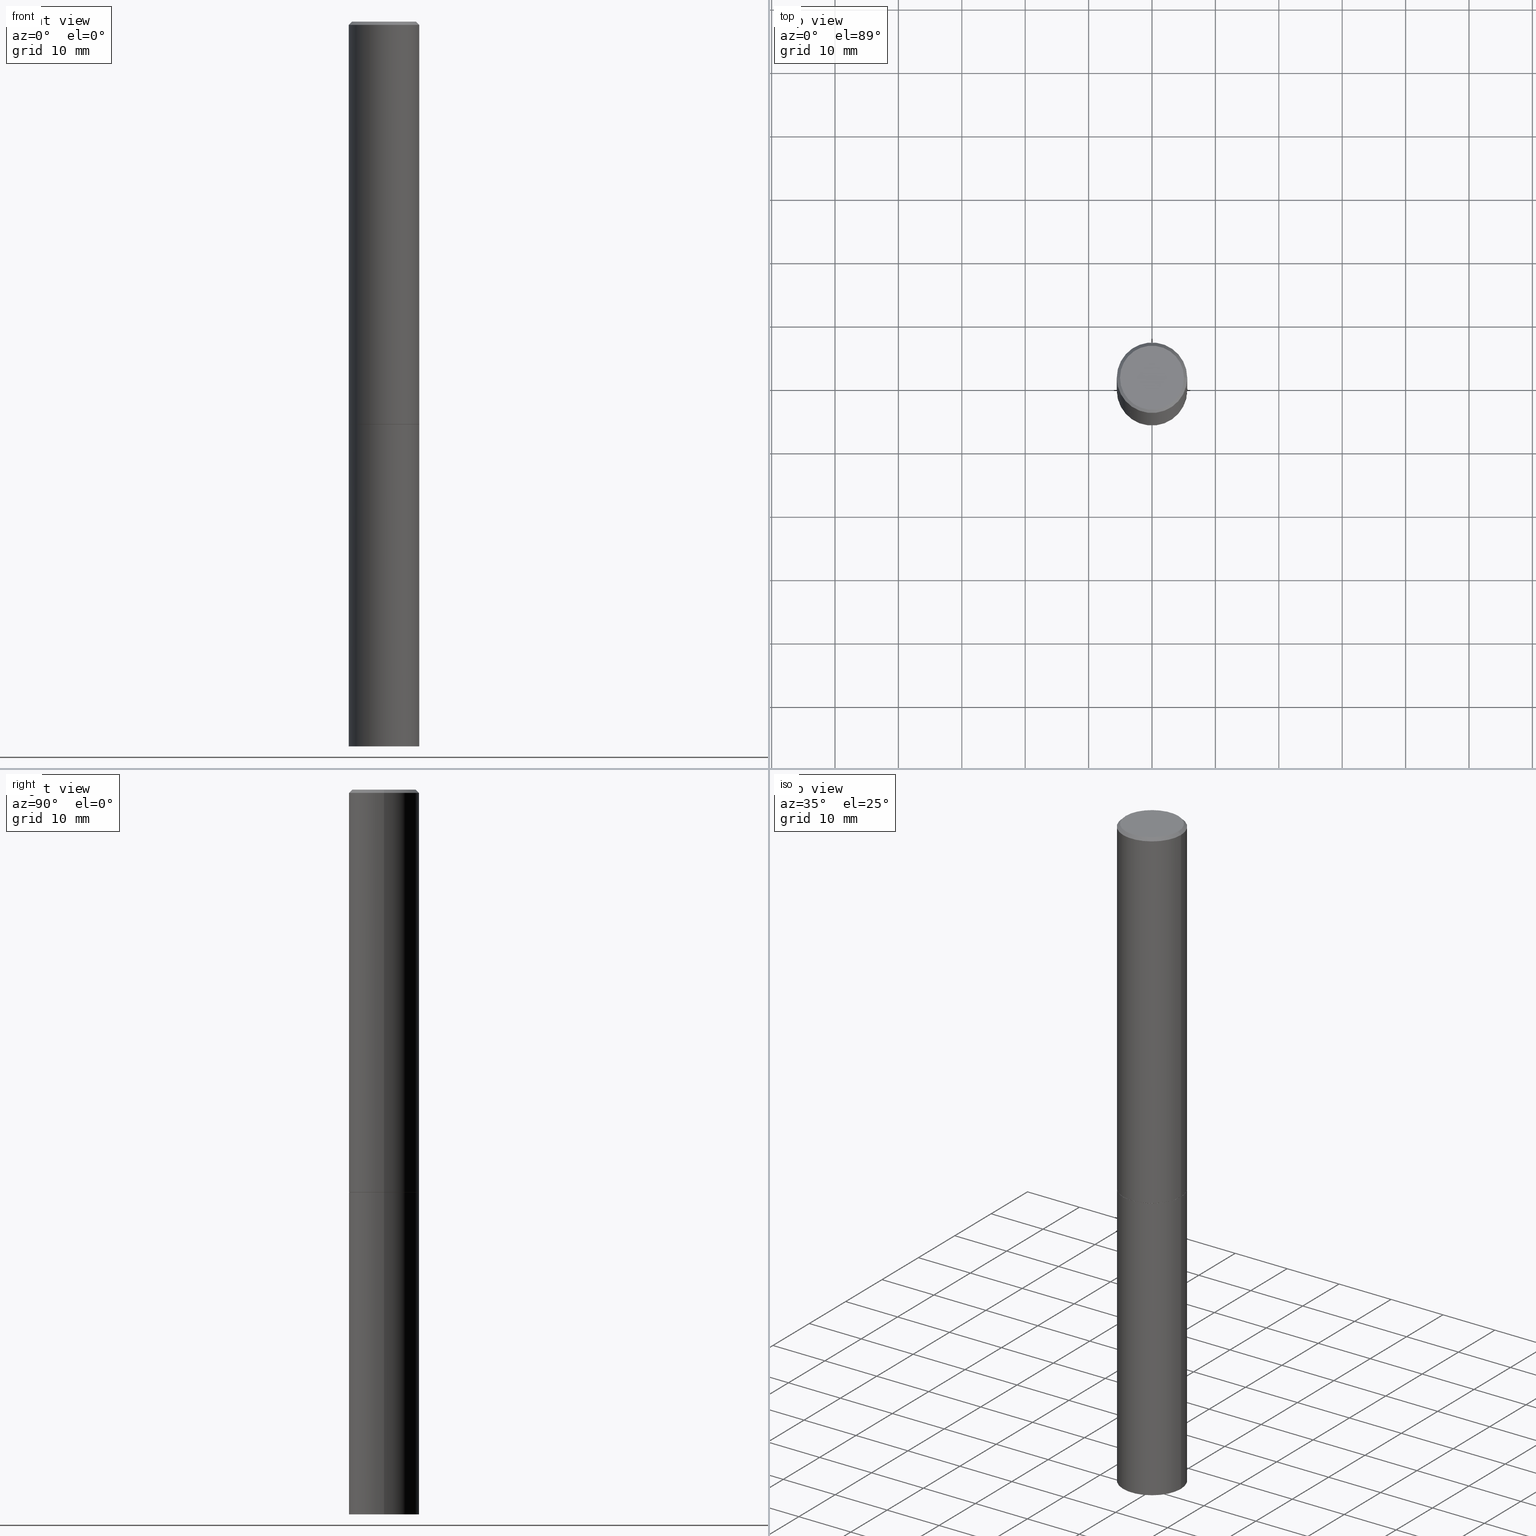
[diagram: canonical four-view strip — front | top / right | iso, engineering-drawing reading convention]
A machine part, canonical four-view strip (front | top / right | iso — engineering-drawing reading convention). The complete STEP part file that produces these views, byte-faithful:
ISO-10303-21;
HEADER;
FILE_DESCRIPTION (( 'STEP AP203' ),
    '1' );
FILE_NAME ('31765.STEP',
    '2023-03-21T20:30:40',
    ( '' ),
    ( '' ),
    'SwSTEP 2.0',
    'SolidWorks 2022',
    '' );
FILE_SCHEMA (( 'CONFIG_CONTROL_DESIGN' ));
ENDSEC;

DATA;
#1 = DIRECTION ( 'NONE',  ( 1.000000000000000000, -6.982962677686262766E-15, 0.000000000000000000 ) ) ;
#2 = LOCAL_TIME ( 16, 30, 40.00000000000000000, #241 ) ;
#3 = APPROVAL_STATUS ( 'not_yet_approved' ) ;
#4 = DATE_AND_TIME ( #61, #127 ) ;
#5 = CARTESIAN_POINT ( 'NONE',  ( 0.1987499999999996769, -1.467043770423236678E-15, 9.982525199991768280E-30 ) ) ;
#6 = PERSON_AND_ORGANIZATION ( #187, #68 ) ;
#7 = EDGE_LOOP ( 'NONE', ( #72, #69, #224 ) ) ;
#8 = MANIFOLD_SOLID_BREP ( 'Body-Move/Copy2[2]', #199 ) ;
#9 = EDGE_LOOP ( 'NONE', ( #213, #247, #135 ) ) ;
#10 = AXIS2_PLACEMENT_3D ( 'NONE', #242, #233, #205 ) ;
#11 = CARTESIAN_POINT ( 'NONE',  ( 1.100460962783311469E-28, -1.571166602479415690E-14, -4.500000000000000000 ) ) ;
#12 = ORIENTED_EDGE ( 'NONE', *, *, #184, .T. ) ;
#13 = DIRECTION ( 'NONE',  ( 1.000000000000000000, -6.982962677686266711E-15, 4.876176775795935793E-29 ) ) ;
#14 = EDGE_CURVE ( 'NONE', #328, #156, #302, .T. ) ;
#15 = ORIENTED_EDGE ( 'NONE', *, *, #208, .T. ) ;
#16 = DIRECTION ( 'NONE',  ( -2.445468806185136597E-29, 3.491481338843145583E-15, 1.000000000000000000 ) ) ;
#17 = CONICAL_SURFACE ( 'NONE', #114, 751.2258538476867216, 1.518436449235075036 ) ;
#18 = CARTESIAN_POINT ( 'NONE',  ( 0.000000000000000000, 0.000000000000000000, 0.000000000000000000 ) ) ;
#19 = DIRECTION ( 'NONE',  ( 1.000000000000000000, -6.982962677686262766E-15, 0.000000000000000000 ) ) ;
#20 = VERTEX_POINT ( 'NONE', #107 ) ;
#21 = PLANE ( 'NONE',  #80 ) ;
#22 = ORIENTED_EDGE ( 'NONE', *, *, #248, .T. ) ;
#23 = EDGE_CURVE ( 'NONE', #125, #194, #95, .T. ) ;
#24 = VECTOR ( 'NONE', #349, 39.37007874015748143 ) ;
#25 = CYLINDRICAL_SURFACE ( 'NONE', #249, 0.2187499999999998612 ) ;
#26 = LOCAL_TIME ( 16, 30, 40.00000000000000000, #185 ) ;
#27 = DIRECTION ( 'NONE',  ( -2.438088387897960049E-29, 3.491481338843145188E-15, 1.000000000000000000 ) ) ;
#28 = PLANE ( 'NONE',  #362 ) ;
#29 = EDGE_CURVE ( 'NONE', #387, #125, #221, .T. ) ;
#30 = PERSON_AND_ORGANIZATION ( #187, #68 ) ;
#31 = DIRECTION ( 'NONE',  ( -2.445468806185136597E-29, 3.491481338843145583E-15, 1.000000000000000000 ) ) ;
#32 = AXIS2_PLACEMENT_3D ( 'NONE', #330, #301, #55 ) ;
#33 = AXIS2_PLACEMENT_3D ( 'NONE', #52, #321, #44 ) ;
#34 = DATE_TIME_ROLE ( 'creation_date' ) ;
#35 = DIRECTION ( 'NONE',  ( 1.000000000000000000, -6.982962677686266711E-15, 4.876176775795935232E-29 ) ) ;
#36 = PERSON_AND_ORGANIZATION ( #187, #68 ) ;
#37 = ORIENTED_EDGE ( 'NONE', *, *, #253, .F. ) ;
#38 = APPROVAL_DATE_TIME ( #120, #225 ) ;
#39 = CONICAL_SURFACE ( 'NONE', #258, 0.2187499999999997224, 0.7853981633974481680 ) ;
#40 = CARTESIAN_POINT ( 'NONE',  ( 6.113672015462842613E-29, -8.728703347107864943E-15, -2.500000000000000000 ) ) ;
#41 = EDGE_LOOP ( 'NONE', ( #289, #46, #37, #141 ) ) ;
#42 = LINE ( 'NONE', #100, #24 ) ;
#43 = ADVANCED_FACE ( 'NONE', ( #352 ), #229, .F. ) ;
#44 = DIRECTION ( 'NONE',  ( -1.000000000000000000, 6.982962677686265922E-15, -4.876176775795935793E-29 ) ) ;
#45 = CARTESIAN_POINT ( 'NONE',  ( 6.113672015462842613E-29, -8.728703347107864943E-15, -2.500000000000000000 ) ) ;
#46 = ORIENTED_EDGE ( 'NONE', *, *, #29, .T. ) ;
#47 = DIRECTION ( 'NONE',  ( 1.000000000000000000, -6.982962677686266711E-15, 0.000000000000000000 ) ) ;
#48 = PRODUCT_DEFINITION_SHAPE ( 'NONE', 'NONE',  #53 ) ;
#49 = AXIS2_PLACEMENT_3D ( 'NONE', #390, #181, #1 ) ;
#50 = ORIENTED_EDGE ( 'NONE', *, *, #128, .T. ) ;
#51 = LINE ( 'NONE', #139, #201 ) ;
#52 = CARTESIAN_POINT ( 'NONE',  ( 1.387863832190143063E-15, 0.1987499999999996769, -6.939319160950740954E-16 ) ) ;
#53 = PRODUCT_DEFINITION ( 'UNKNOWN', '', #246, #124 ) ;
#54 = LINE ( 'NONE', #60, #79 ) ;
#55 = DIRECTION ( 'NONE',  ( -1.000000000000000000, 6.982962677686266711E-15, 0.000000000000000000 ) ) ;
#56 = APPLICATION_CONTEXT ( 'configuration controlled 3d designs of mechanical parts and assemblies' ) ;
#57 = CC_DESIGN_APPROVAL ( #373, ( #53 ) ) ;
#58 = DIRECTION ( 'NONE',  ( -2.445468806185136597E-29, 3.491481338843145583E-15, 1.000000000000000000 ) ) ;
#59 = ADVANCED_FACE ( 'NONE', ( #165 ), #198, .T. ) ;
#60 = CARTESIAN_POINT ( 'NONE',  ( 1.081468510773465056E-18, -1.567163897843045332E-14, -4.488535798281836797 ) ) ;
#61 = CALENDAR_DATE ( 2023, 21, 3 ) ;
#62 = DIRECTION ( 'NONE',  ( 0.9986295347545742773, -7.033825938271993967E-15, -0.05233595624293554960 ) ) ;
#63 = AXIS2_PLACEMENT_3D ( 'NONE', #335, #31, #35 ) ;
#64 = PERSON_AND_ORGANIZATION ( #187, #68 ) ;
#65 = DIRECTION ( 'NONE',  ( -0.7071067811865473507, 2.468850131082255483E-15, -0.7071067811865475727 ) ) ;
#66 = DIRECTION ( 'NONE',  ( -2.445468806185136597E-29, 3.491481338843145583E-15, 1.000000000000000000 ) ) ;
#67 = PERSON_AND_ORGANIZATION_ROLE ( 'creator' ) ;
#68 = ORGANIZATION ( 'UNSPECIFIED', 'UNSPECIFIED', '' ) ;
#69 = ORIENTED_EDGE ( 'NONE', *, *, #280, .T. ) ;
#70 = ADVANCED_FACE ( 'NONE', ( #176 ), #25, .T. ) ;
#71 = CARTESIAN_POINT ( 'NONE',  ( 1.100460962783311469E-28, -1.571166602479415690E-14, -4.500000000000000000 ) ) ;
#72 = ORIENTED_EDGE ( 'NONE', *, *, #245, .F. ) ;
#73 = LINE ( 'NONE', #287, #121 ) ;
#74 = VERTEX_POINT ( 'NONE', #153 ) ;
#75 = DIRECTION ( 'NONE',  ( 1.000000000000000000, 0.000000000000000000, 0.000000000000000000 ) ) ;
#76 = DIRECTION ( 'NONE',  ( -2.445468806185136597E-29, 3.491481338843145583E-15, 1.000000000000000000 ) ) ;
#77 = ORIENTED_EDGE ( 'NONE', *, *, #189, .F. ) ;
#78 = CARTESIAN_POINT ( 'NONE',  ( -0.2177499999999999991, -7.181496539990246005E-15, -2.500000000000000000 ) ) ;
#79 = VECTOR ( 'NONE', #62, 39.37007874015748854 ) ;
#80 = AXIS2_PLACEMENT_3D ( 'NONE', #104, #195, #376 ) ;
#81 = DIRECTION ( 'NONE',  ( 1.000000000000000000, -6.982962677686267499E-15, 4.876176775795935793E-29 ) ) ;
#82 = DIRECTION ( 'NONE',  ( 1.000000000000000000, -6.982962677686267499E-15, 0.000000000000000000 ) ) ;
#83 = ORIENTED_EDGE ( 'NONE', *, *, #136, .T. ) ;
#84 =( LENGTH_UNIT ( ) NAMED_UNIT ( * ) SI_UNIT ( $, .METRE. ) );
#85 = DIRECTION ( 'NONE',  ( 1.000000000000000000, -6.982962677686266711E-15, 4.876176775795935232E-29 ) ) ;
#86 = AXIS2_PLACEMENT_3D ( 'NONE', #389, #58, #85 ) ;
#87 = COORDINATED_UNIVERSAL_TIME_OFFSET ( 5, 0, .BEHIND. ) ;
#88 = DIRECTION ( 'NONE',  ( -2.445468806185136597E-29, 3.491481338843145583E-15, 1.000000000000000000 ) ) ;
#89 = AXIS2_PLACEMENT_3D ( 'NONE', #347, #226, #47 ) ;
#90 = SECURITY_CLASSIFICATION ( '', '', #158 ) ;
#91 = EDGE_LOOP ( 'NONE', ( #262, #22, #50, #323 ) ) ;
#92 = APPROVAL_STATUS ( 'not_yet_approved' ) ;
#93 = ORIENTED_EDGE ( 'NONE', *, *, #264, .T. ) ;
#94 = EDGE_CURVE ( 'NONE', #156, #132, #276, .T. ) ;
#95 = CIRCLE ( 'NONE', #292, 0.2187500000000000000 ) ;
#96 = VECTOR ( 'NONE', #118, 39.37007874015748143 ) ;
#97 = CARTESIAN_POINT ( 'NONE',  ( 1.072548737362512635E-27, -1.531315342084755796E-13, -43.85861453843931912 ) ) ;
#98 = CC_DESIGN_DATE_AND_TIME_ASSIGNMENT ( #4, #243, ( #90 ) ) ;
#99 = DIRECTION ( 'NONE',  ( 1.000000000000000000, -6.982962677686267499E-15, 0.000000000000000000 ) ) ;
#100 = CARTESIAN_POINT ( 'NONE',  ( -0.2187499999999998612, 1.554312234475218171E-15, -1.076017050993259922E-29 ) ) ;
#101 = CIRCLE ( 'NONE', #372, 0.2177499999999999991 ) ;
#102 = ORIENTED_EDGE ( 'NONE', *, *, #94, .F. ) ;
#103 = ADVANCED_FACE ( 'NONE', ( #223 ), #17, .F. ) ;
#104 = CARTESIAN_POINT ( 'NONE',  ( 1.527523085743931585E-15, 0.2187499999999912570, -2.500000000000000444 ) ) ;
#105 = CARTESIAN_POINT ( 'NONE',  ( -0.2187500000000000000, 1.554312234475219157E-15, -1.076017050993260622E-29 ) ) ;
#106 = DIRECTION ( 'NONE',  ( 1.000000000000000000, -6.982962677686262766E-15, 0.000000000000000000 ) ) ;
#107 = CARTESIAN_POINT ( 'NONE',  ( -0.2177499999999999991, -7.176198085642026759E-15, -2.500000000000000000 ) ) ;
#108 = DIRECTION ( 'NONE',  ( -0.9986295347545742773, 6.790662755453672411E-15, -0.05233595624293554960 ) ) ;
#109 = AXIS2_PLACEMENT_3D ( 'NONE', #191, #298, #324 ) ;
#110 = ORIENTED_EDGE ( 'NONE', *, *, #236, .F. ) ;
#111 = FACE_OUTER_BOUND ( 'NONE', #375, .T. ) ;
#112 = COORDINATED_UNIVERSAL_TIME_OFFSET ( 5, 0, .BEHIND. ) ;
#113 = CARTESIAN_POINT ( 'NONE',  ( -0.2187500000000003331, -1.418414293905028211E-14, -4.500000000000000000 ) ) ;
#114 = AXIS2_PLACEMENT_3D ( 'NONE', #374, #137, #317 ) ;
#115 = PRODUCT ( '31765', '31765', '', ( #326 ) ) ;
#116 = APPLICATION_PROTOCOL_DEFINITION ( 'international standard', 'config_control_design', 1994, #56 ) ;
#117 = APPROVAL_DATE_TIME ( #364, #373 ) ;
#118 = DIRECTION ( 'NONE',  ( -2.445468806185136877E-29, 3.491481338843145188E-15, 1.000000000000000000 ) ) ;
#119 = CC_DESIGN_PERSON_AND_ORGANIZATION_ASSIGNMENT ( #154, #122, ( #115 ) ) ;
#120 = DATE_AND_TIME ( #337, #26 ) ;
#121 = VECTOR ( 'NONE', #169, 39.37007874015748854 ) ;
#122 = PERSON_AND_ORGANIZATION_ROLE ( 'design_owner' ) ;
#123 = ADVANCED_FACE ( 'NONE', ( #166 ), #126, .F. ) ;
#124 = DESIGN_CONTEXT ( 'detailed design', #56, 'design' ) ;
#125 = VERTEX_POINT ( 'NONE', #320 ) ;
#126 = CONICAL_SURFACE ( 'NONE', #211, 751.2258538476867216, 1.518436449235075036 ) ;
#127 = LOCAL_TIME ( 16, 30, 40.00000000000000000, #273 ) ;
#128 = EDGE_CURVE ( 'NONE', #74, #186, #295, .T. ) ;
#129 = DIRECTION ( 'NONE',  ( -2.445468806185136597E-29, 3.491481338843145583E-15, 1.000000000000000000 ) ) ;
#130 = DIRECTION ( 'NONE',  ( -2.445468806185136597E-29, 3.491481338843145583E-15, 1.000000000000000000 ) ) ;
#131 = FACE_OUTER_BOUND ( 'NONE', #91, .T. ) ;
#132 = VERTEX_POINT ( 'NONE', #220 ) ;
#133 = DIRECTION ( 'NONE',  ( -2.445468806185136597E-29, 3.491481338843145583E-15, 1.000000000000000000 ) ) ;
#134 = CIRCLE ( 'NONE', #212, 0.2187500000000000000 ) ;
#135 = ORIENTED_EDGE ( 'NONE', *, *, #178, .F. ) ;
#136 = EDGE_CURVE ( 'NONE', #186, #132, #182, .T. ) ;
#137 = DIRECTION ( 'NONE',  ( 2.445468806185136597E-29, -3.491481338843145583E-15, -1.000000000000000000 ) ) ;
#138 = EDGE_LOOP ( 'NONE', ( #256, #286 ) ) ;
#139 = CARTESIAN_POINT ( 'NONE',  ( -1.081468510553933694E-18, -1.567163897843045332E-14, -4.488535798281836797 ) ) ;
#140 = ADVANCED_BREP_SHAPE_REPRESENTATION ( '31765', ( #281, #8, #160 ), #251 ) ;
#141 = ORIENTED_EDGE ( 'NONE', *, *, #336, .F. ) ;
#142 =( CONVERSION_BASED_UNIT ( 'INCH', #238 ) LENGTH_UNIT ( ) NAMED_UNIT ( #151 ) );
#143 = CIRCLE ( 'NONE', #368, 0.2187500000000000000 ) ;
#144 = AXIS2_PLACEMENT_3D ( 'NONE', #230, #357, #82 ) ;
#145 =( NAMED_UNIT ( * ) SI_UNIT ( $, .STERADIAN. ) SOLID_ANGLE_UNIT ( ) );
#146 = DIRECTION ( 'NONE',  ( -2.445468806185136597E-29, 3.491481338843145583E-15, 1.000000000000000000 ) ) ;
#147 = CALENDAR_DATE ( 2023, 21, 3 ) ;
#148 = CARTESIAN_POINT ( 'NONE',  ( 6.111226546656659252E-29, -8.725211865769023513E-15, -2.499000000000000998 ) ) ;
#149 = CC_DESIGN_APPROVAL ( #342, ( #246 ) ) ;
#150 = FACE_OUTER_BOUND ( 'NONE', #41, .T. ) ;
#151 = DIMENSIONAL_EXPONENTS ( 1.000000000000000000, 0.000000000000000000, 0.000000000000000000, 0.000000000000000000, 0.000000000000000000, 0.000000000000000000, 0.000000000000000000 ) ;
#152 = CALENDAR_DATE ( 2023, 21, 3 ) ;
#153 = CARTESIAN_POINT ( 'NONE',  ( 0.2187500000000000000, -1.025273495151289515E-14, -2.499000000000000998 ) ) ;
#154 = PERSON_AND_ORGANIZATION ( #187, #68 ) ;
#155 = UNCERTAINTY_MEASURE_WITH_UNIT (LENGTH_MEASURE( 1.000000000000000082E-05 ), #142, 'distance_accuracy_value', 'NONE');
#156 = VERTEX_POINT ( 'NONE', #164 ) ;
#157 = CIRCLE ( 'NONE', #377, 0.2187500000000000000 ) ;
#158 = SECURITY_CLASSIFICATION_LEVEL ( 'unclassified' ) ;
#159 = ORIENTED_EDGE ( 'NONE', *, *, #189, .T. ) ;
#160 = AXIS2_PLACEMENT_3D ( 'NONE', #293, #267, #75 ) ;
#161 = APPLICATION_CONTEXT ( 'configuration controlled 3d designs of mechanical parts and assemblies' ) ;
#162 = DIRECTION ( 'NONE',  ( -2.445468806185136597E-29, 3.491481338843145583E-15, 1.000000000000000000 ) ) ;
#163 = ORIENTED_EDGE ( 'NONE', *, *, #297, .T. ) ;
#164 = CARTESIAN_POINT ( 'NONE',  ( -0.1987499999999996769, 1.422778645578574515E-15, -9.827974342635069682E-30 ) ) ;
#165 = FACE_OUTER_BOUND ( 'NONE', #260, .T. ) ;
#166 = FACE_OUTER_BOUND ( 'NONE', #9, .T. ) ;
#167 = VERTEX_POINT ( 'NONE', #354 ) ;
#168 = VECTOR ( 'NONE', #327, 39.37007874015748143 ) ;
#169 = DIRECTION ( 'NONE',  ( 0.7071067811865473507, -7.319954787623254468E-15, -0.7071067811865475727 ) ) ;
#170 = AXIS2_PLACEMENT_3D ( 'NONE', #148, #88, #329 ) ;
#171 = ORIENTED_EDGE ( 'NONE', *, *, #248, .F. ) ;
#172 = CARTESIAN_POINT ( 'NONE',  ( 0.2187500000000000000, -1.025622643285173500E-14, -2.500000000000000000 ) ) ;
#173 = EDGE_LOOP ( 'NONE', ( #110, #319, #299, #171 ) ) ;
#174 = EDGE_CURVE ( 'NONE', #132, #186, #282, .T. ) ;
#175 = CARTESIAN_POINT ( 'NONE',  ( 0.2187500000000003331, -1.721239996180668100E-14, -4.500000000000000000 ) ) ;
#176 = FACE_OUTER_BOUND ( 'NONE', #192, .T. ) ;
#177 = DIRECTION ( 'NONE',  ( -1.000000000000000000, 6.982962677686266711E-15, 0.000000000000000000 ) ) ;
#178 = EDGE_CURVE ( 'NONE', #383, #387, #143, .T. ) ;
#179 = CARTESIAN_POINT ( 'NONE',  ( 1.097732946556823733E-28, -1.567055750991979181E-14, -4.488535798281836797 ) ) ;
#180 = PERSON_AND_ORGANIZATION ( #187, #68 ) ;
#181 = DIRECTION ( 'NONE',  ( -2.445468806185136597E-29, 3.491481338843145583E-15, 1.000000000000000000 ) ) ;
#182 = CIRCLE ( 'NONE', #89, 0.2187499999999997224 ) ;
#183 = CC_DESIGN_SECURITY_CLASSIFICATION ( #90, ( #246 ) ) ;
#184 = EDGE_CURVE ( 'NONE', #311, #132, #42, .T. ) ;
#185 = COORDINATED_UNIVERSAL_TIME_OFFSET ( 5, 0, .BEHIND. ) ;
#186 = VERTEX_POINT ( 'NONE', #200 ) ;
#187 = PERSON ( 'UNSPECIFIED', 'UNSPECIFIED', 'UNSPECIFIED', ('UNSPECIFIED'), ('UNSPECIFIED'), ('UNSPECIFIED') ) ;
#188 = DIRECTION ( 'NONE',  ( 1.000000000000000000, -6.982962677686266711E-15, 4.876176775795935793E-29 ) ) ;
#189 = EDGE_CURVE ( 'NONE', #328, #186, #73, .T. ) ;
#190 = CIRCLE ( 'NONE', #10, 0.2177499999999999991 ) ;
#191 = CARTESIAN_POINT ( 'NONE',  ( 4.890937612370280165E-31, -6.982962677686301470E-17, -0.02000000000000003164 ) ) ;
#192 = EDGE_LOOP ( 'NONE', ( #355, #12, #291, #325 ) ) ;
#193 = DIRECTION ( 'NONE',  ( -1.000000000000000000, 6.982962677686265133E-15, 0.000000000000000000 ) ) ;
#194 = VERTEX_POINT ( 'NONE', #172 ) ;
#195 = DIRECTION ( 'NONE',  ( 2.438088387897960049E-29, -3.491481338843145188E-15, -1.000000000000000000 ) ) ;
#196 = ORIENTED_EDGE ( 'NONE', *, *, #346, .F. ) ;
#197 = APPLICATION_PROTOCOL_DEFINITION ( 'international standard', 'config_control_design', 1994, #161 ) ;
#198 = CONICAL_SURFACE ( 'NONE', #32, 0.2187499999999997224, 0.7853981633974481680 ) ;
#199 = CLOSED_SHELL ( 'NONE', ( #234, #70, #59, #285, #206, #313, #385, #43 ) ) ;
#200 = CARTESIAN_POINT ( 'NONE',  ( 0.2187499999999997224, -1.570563563789383461E-15, -0.02000000000000003164 ) ) ;
#201 = VECTOR ( 'NONE', #108, 39.37007874015748854 ) ;
#202 = ORIENTED_EDGE ( 'NONE', *, *, #14, .F. ) ;
#203 = DIRECTION ( 'NONE',  ( 1.000000000000000000, -6.982962677686267499E-15, 4.876176775795935793E-29 ) ) ;
#204 = CARTESIAN_POINT ( 'NONE',  ( 0.000000000000000000, 0.000000000000000000, 0.000000000000000000 ) ) ;
#205 = DIRECTION ( 'NONE',  ( 1.000000000000000000, -6.982962677686262766E-15, 0.000000000000000000 ) ) ;
#206 = ADVANCED_FACE ( 'NONE', ( #131 ), #322, .T. ) ;
#207 = CYLINDRICAL_SURFACE ( 'NONE', #86, 0.2187500000000000000 ) ;
#208 = EDGE_CURVE ( 'NONE', #167, #20, #101, .T. ) ;
#209 = APPROVAL_ROLE ( '' ) ;
#210 = DIRECTION ( 'NONE',  ( 2.445468806185136597E-29, -3.491481338843145583E-15, -1.000000000000000000 ) ) ;
#211 = AXIS2_PLACEMENT_3D ( 'NONE', #97, #290, #193 ) ;
#212 = AXIS2_PLACEMENT_3D ( 'NONE', #40, #162, #284 ) ;
#213 = ORIENTED_EDGE ( 'NONE', *, *, #280, .F. ) ;
#214 = CC_DESIGN_PERSON_AND_ORGANIZATION_ASSIGNMENT ( #36, #332, ( #246 ) ) ;
#215 = PERSON_AND_ORGANIZATION ( #187, #68 ) ;
#216 = ORIENTED_EDGE ( 'NONE', *, *, #336, .T. ) ;
#217 = APPROVAL_PERSON_ORGANIZATION ( #309, #342, #209 ) ;
#218 = EDGE_LOOP ( 'NONE', ( #163, #344 ) ) ;
#219 = ORIENTED_EDGE ( 'NONE', *, *, #365, .F. ) ;
#220 = CARTESIAN_POINT ( 'NONE',  ( -0.2187499999999997224, 1.457693458967005770E-15, -0.02000000000000003164 ) ) ;
#221 = LINE ( 'NONE', #105, #386 ) ;
#222 = ADVANCED_FACE ( 'NONE', ( #380 ), #21, .F. ) ;
#223 = FACE_OUTER_BOUND ( 'NONE', #7, .T. ) ;
#224 = ORIENTED_EDGE ( 'NONE', *, *, #264, .F. ) ;
#225 = APPROVAL ( #3, 'UNSPECIFIED' ) ;
#226 = DIRECTION ( 'NONE',  ( -2.445468806185136597E-29, 3.491481338843145583E-15, 1.000000000000000000 ) ) ;
#227 = DIRECTION ( 'NONE',  ( -2.445468806185136877E-29, 3.491481338843145188E-15, 1.000000000000000000 ) ) ;
#228 = DIRECTION ( 'NONE',  ( -0.7071067811868130271, 7.493145998871311837E-15, 0.7071067811862817853 ) ) ;
#229 = PLANE ( 'NONE',  #33 ) ;
#230 = CARTESIAN_POINT ( 'NONE',  ( 6.111226546656659252E-29, -8.725211865769023513E-15, -2.499000000000000998 ) ) ;
#231 = CC_DESIGN_PERSON_AND_ORGANIZATION_ASSIGNMENT ( #215, #305, ( #53 ) ) ;
#232 = ORIENTED_EDGE ( 'NONE', *, *, #23, .F. ) ;
#233 = DIRECTION ( 'NONE',  ( -2.445468806185136597E-29, 3.491481338843145583E-15, 1.000000000000000000 ) ) ;
#234 = ADVANCED_FACE ( 'NONE', ( #384 ), #318, .T. ) ;
#235 = CARTESIAN_POINT ( 'NONE',  ( 4.890937612370280165E-31, -6.982962677686301470E-17, -0.02000000000000003164 ) ) ;
#236 = EDGE_CURVE ( 'NONE', #20, #311, #351, .T. ) ;
#237 = APPROVAL_ROLE ( '' ) ;
#238 = LENGTH_MEASURE_WITH_UNIT ( LENGTH_MEASURE( 0.02539999999999999897 ), #84 );
#239 = CLOSED_SHELL ( 'NONE', ( #277, #103, #123, #268, #222 ) ) ;
#240 = CONICAL_SURFACE ( 'NONE', #49, 0.2177499999999999991, 0.7853981633978239785 ) ;
#241 = COORDINATED_UNIVERSAL_TIME_OFFSET ( 5, 0, .BEHIND. ) ;
#242 = CARTESIAN_POINT ( 'NONE',  ( 6.113672015462842613E-29, -8.728703347107864943E-15, -2.500000000000000000 ) ) ;
#243 = DATE_TIME_ROLE ( 'classification_date' ) ;
#244 = CARTESIAN_POINT ( 'NONE',  ( 0.2177499999999999991, -1.024924347017404898E-14, -2.500000000000000000 ) ) ;
#245 = EDGE_CURVE ( 'NONE', #340, #387, #51, .T. ) ;
#246 = PRODUCT_DEFINITION_FORMATION_WITH_SPECIFIED_SOURCE ( 'ANY', '', #115, .NOT_KNOWN. ) ;
#247 = ORIENTED_EDGE ( 'NONE', *, *, #245, .T. ) ;
#248 = EDGE_CURVE ( 'NONE', #311, #74, #250, .T. ) ;
#249 = AXIS2_PLACEMENT_3D ( 'NONE', #204, #66, #188 ) ;
#250 = CIRCLE ( 'NONE', #144, 0.2187500000000000000 ) ;
#251 =( GEOMETRIC_REPRESENTATION_CONTEXT ( 3 ) GLOBAL_UNCERTAINTY_ASSIGNED_CONTEXT ( ( #155 ) ) GLOBAL_UNIT_ASSIGNED_CONTEXT ( ( #142, #331, #145 ) ) REPRESENTATION_CONTEXT ( 'NONE', 'WORKASPACE' ) );
#252 = DIRECTION ( 'NONE',  ( 1.000000000000000000, -6.982962677686262766E-15, 0.000000000000000000 ) ) ;
#253 = EDGE_CURVE ( 'NONE', #194, #125, #134, .T. ) ;
#254 = ORIENTED_EDGE ( 'NONE', *, *, #208, .F. ) ;
#255 = DIRECTION ( 'NONE',  ( 1.000000000000000000, -6.982962677686262766E-15, 0.000000000000000000 ) ) ;
#256 = ORIENTED_EDGE ( 'NONE', *, *, #253, .T. ) ;
#257 = AXIS2_PLACEMENT_3D ( 'NONE', #18, #130, #81 ) ;
#258 = AXIS2_PLACEMENT_3D ( 'NONE', #235, #210, #177 ) ;
#259 = CARTESIAN_POINT ( 'NONE',  ( 0.2187499999999998612, -1.527523085743869857E-15, 1.066663669705360324E-29 ) ) ;
#260 = EDGE_LOOP ( 'NONE', ( #202, #159, #83, #102 ) ) ;
#261 = CARTESIAN_POINT ( 'NONE',  ( 0.000000000000000000, 0.000000000000000000, 0.000000000000000000 ) ) ;
#262 = ORIENTED_EDGE ( 'NONE', *, *, #184, .F. ) ;
#263 = CARTESIAN_POINT ( 'NONE',  ( 6.113672015462842613E-29, -8.728703347107864943E-15, -2.500000000000000000 ) ) ;
#264 = EDGE_CURVE ( 'NONE', #387, #383, #157, .T. ) ;
#265 = EDGE_LOOP ( 'NONE', ( #15, #378, #219, #196 ) ) ;
#266 = DIRECTION ( 'NONE',  ( 1.000000000000000000, -6.982962677686265922E-15, 4.876176775795935793E-29 ) ) ;
#267 = DIRECTION ( 'NONE',  ( 0.000000000000000000, 0.000000000000000000, 1.000000000000000000 ) ) ;
#268 = ADVANCED_FACE ( 'NONE', ( #111 ), #333, .T. ) ;
#269 = CARTESIAN_POINT ( 'NONE',  ( -0.2187500000000000000, -2.843208511797721488E-15, -2.499000000000000998 ) ) ;
#270 = APPROVAL_STATUS ( 'not_yet_approved' ) ;
#271 = CARTESIAN_POINT ( 'NONE',  ( 6.113672015462842613E-29, -8.728703347107864943E-15, -2.500000000000000000 ) ) ;
#272 = LOCAL_TIME ( 16, 30, 40.00000000000000000, #87 ) ;
#273 = COORDINATED_UNIVERSAL_TIME_OFFSET ( 5, 0, .BEHIND. ) ;
#274 = FACE_OUTER_BOUND ( 'NONE', #173, .T. ) ;
#275 = DATE_AND_TIME ( #147, #308 ) ;
#276 = LINE ( 'NONE', #339, #306 ) ;
#277 = ADVANCED_FACE ( 'NONE', ( #150 ), #207, .T. ) ;
#278 = DATE_AND_TIME ( #152, #272 ) ;
#279 = CC_DESIGN_APPROVAL ( #225, ( #90 ) ) ;
#280 = EDGE_CURVE ( 'NONE', #340, #383, #54, .T. ) ;
#281 = MANIFOLD_SOLID_BREP ( 'Body-Move/Copy2[1]', #239 ) ;
#282 = CIRCLE ( 'NONE', #109, 0.2187499999999997224 ) ;
#283 = CIRCLE ( 'NONE', #312, 0.1987499999999996769 ) ;
#284 = DIRECTION ( 'NONE',  ( 1.000000000000000000, -6.982962677686267499E-15, 0.000000000000000000 ) ) ;
#285 = ADVANCED_FACE ( 'NONE', ( #359 ), #39, .T. ) ;
#286 = ORIENTED_EDGE ( 'NONE', *, *, #23, .T. ) ;
#287 = CARTESIAN_POINT ( 'NONE',  ( 0.2187499999999997224, -1.570563563789383461E-15, -0.02000000000000003164 ) ) ;
#288 = CC_DESIGN_PERSON_AND_ORGANIZATION_ASSIGNMENT ( #30, #67, ( #246 ) ) ;
#289 = ORIENTED_EDGE ( 'NONE', *, *, #178, .T. ) ;
#290 = DIRECTION ( 'NONE',  ( 2.445468806185136597E-29, -3.491481338843145583E-15, -1.000000000000000000 ) ) ;
#291 = ORIENTED_EDGE ( 'NONE', *, *, #136, .F. ) ;
#292 = AXIS2_PLACEMENT_3D ( 'NONE', #348, #381, #99 ) ;
#293 = CARTESIAN_POINT ( 'NONE',  ( 0.000000000000000000, 0.000000000000000000, 0.000000000000000000 ) ) ;
#294 = APPROVAL_PERSON_ORGANIZATION ( #64, #373, #310 ) ;
#295 = LINE ( 'NONE', #259, #168 ) ;
#296 = ORIENTED_EDGE ( 'NONE', *, *, #174, .T. ) ;
#297 = EDGE_CURVE ( 'NONE', #156, #328, #283, .T. ) ;
#298 = DIRECTION ( 'NONE',  ( -2.445468806185136597E-29, 3.491481338843145583E-15, 1.000000000000000000 ) ) ;
#299 = ORIENTED_EDGE ( 'NONE', *, *, #346, .T. ) ;
#300 = FACE_OUTER_BOUND ( 'NONE', #345, .T. ) ;
#301 = DIRECTION ( 'NONE',  ( 2.445468806185136597E-29, -3.491481338843145583E-15, -1.000000000000000000 ) ) ;
#302 = CIRCLE ( 'NONE', #257, 0.1987499999999996769 ) ;
#303 = AXIS2_PLACEMENT_3D ( 'NONE', #261, #76, #13 ) ;
#304 = CARTESIAN_POINT ( 'NONE',  ( 0.2187500000000000000, -1.527523085743870843E-15, 1.066663669705360885E-29 ) ) ;
#305 = PERSON_AND_ORGANIZATION_ROLE ( 'creator' ) ;
#306 = VECTOR ( 'NONE', #65, 39.37007874015748854 ) ;
#307 = LINE ( 'NONE', #304, #96 ) ;
#308 = LOCAL_TIME ( 16, 30, 40.00000000000000000, #112 ) ;
#309 = PERSON_AND_ORGANIZATION ( #187, #68 ) ;
#310 = APPROVAL_ROLE ( '' ) ;
#311 = VERTEX_POINT ( 'NONE', #269 ) ;
#312 = AXIS2_PLACEMENT_3D ( 'NONE', #361, #146, #203 ) ;
#313 = ADVANCED_FACE ( 'NONE', ( #274 ), #240, .T. ) ;
#314 = ORIENTED_EDGE ( 'NONE', *, *, #379, .F. ) ;
#315 = ORIENTED_EDGE ( 'NONE', *, *, #29, .F. ) ;
#316 = CC_DESIGN_DATE_AND_TIME_ASSIGNMENT ( #275, #34, ( #53 ) ) ;
#317 = DIRECTION ( 'NONE',  ( -1.000000000000000000, 6.982962677686265133E-15, 0.000000000000000000 ) ) ;
#318 = CONICAL_SURFACE ( 'NONE', #388, 0.2177499999999999991, 0.7853981633978239785 ) ;
#319 = ORIENTED_EDGE ( 'NONE', *, *, #379, .T. ) ;
#320 = CARTESIAN_POINT ( 'NONE',  ( -0.2187500000000000000, -1.066587245147579176E-14, -2.500000000000000000 ) ) ;
#321 = DIRECTION ( 'NONE',  ( 2.438088387897960049E-29, -3.491481338843145188E-15, -1.000000000000000000 ) ) ;
#322 = CYLINDRICAL_SURFACE ( 'NONE', #303, 0.2187499999999998612 ) ;
#323 = ORIENTED_EDGE ( 'NONE', *, *, #174, .F. ) ;
#324 = DIRECTION ( 'NONE',  ( 1.000000000000000000, -6.982962677686266711E-15, 0.000000000000000000 ) ) ;
#325 = ORIENTED_EDGE ( 'NONE', *, *, #128, .F. ) ;
#326 = MECHANICAL_CONTEXT ( 'NONE', #161, 'mechanical' ) ;
#327 = DIRECTION ( 'NONE',  ( -2.445468806185136877E-29, 3.491481338843145188E-15, 1.000000000000000000 ) ) ;
#328 = VERTEX_POINT ( 'NONE', #5 ) ;
#329 = DIRECTION ( 'NONE',  ( 1.000000000000000000, -6.982962677686267499E-15, 0.000000000000000000 ) ) ;
#330 = CARTESIAN_POINT ( 'NONE',  ( 4.890937612370280165E-31, -6.982962677686301470E-17, -0.02000000000000003164 ) ) ;
#331 =( NAMED_UNIT ( * ) PLANE_ANGLE_UNIT ( ) SI_UNIT ( $, .RADIAN. ) );
#332 = PERSON_AND_ORGANIZATION_ROLE ( 'design_supplier' ) ;
#333 = CYLINDRICAL_SURFACE ( 'NONE', #63, 0.2187500000000000000 ) ;
#334 = PERSON_AND_ORGANIZATION_ROLE ( 'classification_officer' ) ;
#335 = CARTESIAN_POINT ( 'NONE',  ( 0.000000000000000000, 0.000000000000000000, 0.000000000000000000 ) ) ;
#336 = EDGE_CURVE ( 'NONE', #383, #194, #307, .T. ) ;
#337 = CALENDAR_DATE ( 2023, 21, 3 ) ;
#338 = CIRCLE ( 'NONE', #170, 0.2187500000000000000 ) ;
#339 = CARTESIAN_POINT ( 'NONE',  ( -0.2187499999999997224, 1.457693458967005770E-15, -0.02000000000000003164 ) ) ;
#340 = VERTEX_POINT ( 'NONE', #179 ) ;
#341 = APPROVAL_DATE_TIME ( #278, #342 ) ;
#342 = APPROVAL ( #270, 'UNSPECIFIED' ) ;
#343 = VECTOR ( 'NONE', #228, 39.37007874015748854 ) ;
#344 = ORIENTED_EDGE ( 'NONE', *, *, #14, .T. ) ;
#345 = EDGE_LOOP ( 'NONE', ( #254, #314 ) ) ;
#346 = EDGE_CURVE ( 'NONE', #167, #74, #363, .T. ) ;
#347 = CARTESIAN_POINT ( 'NONE',  ( 4.890937612370280165E-31, -6.982962677686301470E-17, -0.02000000000000003164 ) ) ;
#348 = CARTESIAN_POINT ( 'NONE',  ( 6.113672015462842613E-29, -8.728703347107864943E-15, -2.500000000000000000 ) ) ;
#349 = DIRECTION ( 'NONE',  ( -2.445468806185136877E-29, 3.491481338843145188E-15, 1.000000000000000000 ) ) ;
#350 = ORIENTED_EDGE ( 'NONE', *, *, #94, .T. ) ;
#351 = LINE ( 'NONE', #78, #343 ) ;
#352 = FACE_OUTER_BOUND ( 'NONE', #218, .T. ) ;
#353 = CC_DESIGN_PERSON_AND_ORGANIZATION_ASSIGNMENT ( #6, #334, ( #90 ) ) ;
#354 = CARTESIAN_POINT ( 'NONE',  ( 0.2177499999999999991, -1.024924347017404898E-14, -2.500000000000000000 ) ) ;
#355 = ORIENTED_EDGE ( 'NONE', *, *, #365, .T. ) ;
#356 = APPROVAL_PERSON_ORGANIZATION ( #180, #225, #237 ) ;
#357 = DIRECTION ( 'NONE',  ( -2.445468806185136597E-29, 3.491481338843145583E-15, 1.000000000000000000 ) ) ;
#358 = ORIENTED_EDGE ( 'NONE', *, *, #297, .F. ) ;
#359 = FACE_OUTER_BOUND ( 'NONE', #370, .T. ) ;
#360 = PRODUCT_RELATED_PRODUCT_CATEGORY ( 'detail', '', ( #115 ) ) ;
#361 = CARTESIAN_POINT ( 'NONE',  ( 0.000000000000000000, 0.000000000000000000, 0.000000000000000000 ) ) ;
#362 = AXIS2_PLACEMENT_3D ( 'NONE', #271, #27, #266 ) ;
#363 = LINE ( 'NONE', #244, #369 ) ;
#364 = DATE_AND_TIME ( #371, #2 ) ;
#365 = EDGE_CURVE ( 'NONE', #74, #311, #338, .T. ) ;
#366 = DIRECTION ( 'NONE',  ( 0.7071067811868130271, -2.468850131085038979E-15, 0.7071067811862817853 ) ) ;
#367 = SHAPE_DEFINITION_REPRESENTATION ( #48, #140 ) ;
#368 = AXIS2_PLACEMENT_3D ( 'NONE', #71, #133, #19 ) ;
#369 = VECTOR ( 'NONE', #366, 39.37007874015748854 ) ;
#370 = EDGE_LOOP ( 'NONE', ( #77, #358, #350, #296 ) ) ;
#371 = CALENDAR_DATE ( 2023, 21, 3 ) ;
#372 = AXIS2_PLACEMENT_3D ( 'NONE', #263, #16, #255 ) ;
#373 = APPROVAL ( #92, 'UNSPECIFIED' ) ;
#374 = CARTESIAN_POINT ( 'NONE',  ( 1.072548737362512635E-27, -1.531315342084755796E-13, -43.85861453843931912 ) ) ;
#375 = EDGE_LOOP ( 'NONE', ( #315, #93, #216, #232 ) ) ;
#376 = DIRECTION ( 'NONE',  ( -1.000000000000000000, 6.982962677686265922E-15, -4.876176775795935793E-29 ) ) ;
#377 = AXIS2_PLACEMENT_3D ( 'NONE', #11, #129, #252 ) ;
#378 = ORIENTED_EDGE ( 'NONE', *, *, #236, .T. ) ;
#379 = EDGE_CURVE ( 'NONE', #20, #167, #190, .T. ) ;
#380 = FACE_OUTER_BOUND ( 'NONE', #138, .T. ) ;
#381 = DIRECTION ( 'NONE',  ( -2.445468806185136597E-29, 3.491481338843145583E-15, 1.000000000000000000 ) ) ;
#382 = DIRECTION ( 'NONE',  ( -2.445468806185136597E-29, 3.491481338843145583E-15, 1.000000000000000000 ) ) ;
#383 = VERTEX_POINT ( 'NONE', #175 ) ;
#384 = FACE_OUTER_BOUND ( 'NONE', #265, .T. ) ;
#385 = ADVANCED_FACE ( 'NONE', ( #300 ), #28, .F. ) ;
#386 = VECTOR ( 'NONE', #227, 39.37007874015748143 ) ;
#387 = VERTEX_POINT ( 'NONE', #113 ) ;
#388 = AXIS2_PLACEMENT_3D ( 'NONE', #45, #382, #106 ) ;
#389 = CARTESIAN_POINT ( 'NONE',  ( 0.000000000000000000, 0.000000000000000000, 0.000000000000000000 ) ) ;
#390 = CARTESIAN_POINT ( 'NONE',  ( 6.113672015462842613E-29, -8.728703347107864943E-15, -2.500000000000000000 ) ) ;
ENDSEC;
END-ISO-10303-21;
